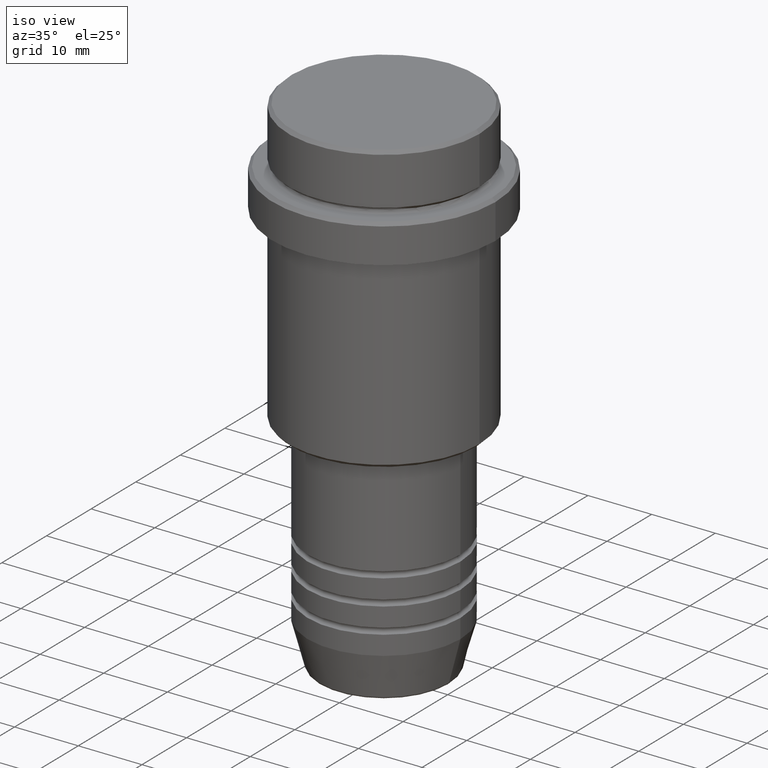
[diagram: clean part render]
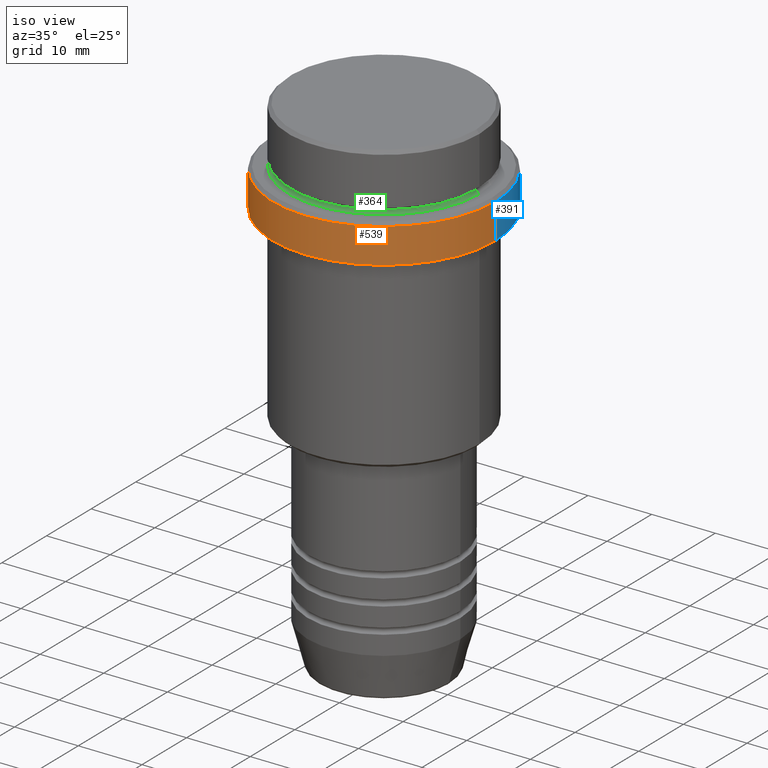
[diagram: same view with three faces highlighted in distinct colors, each labeled with its STEP entity id]
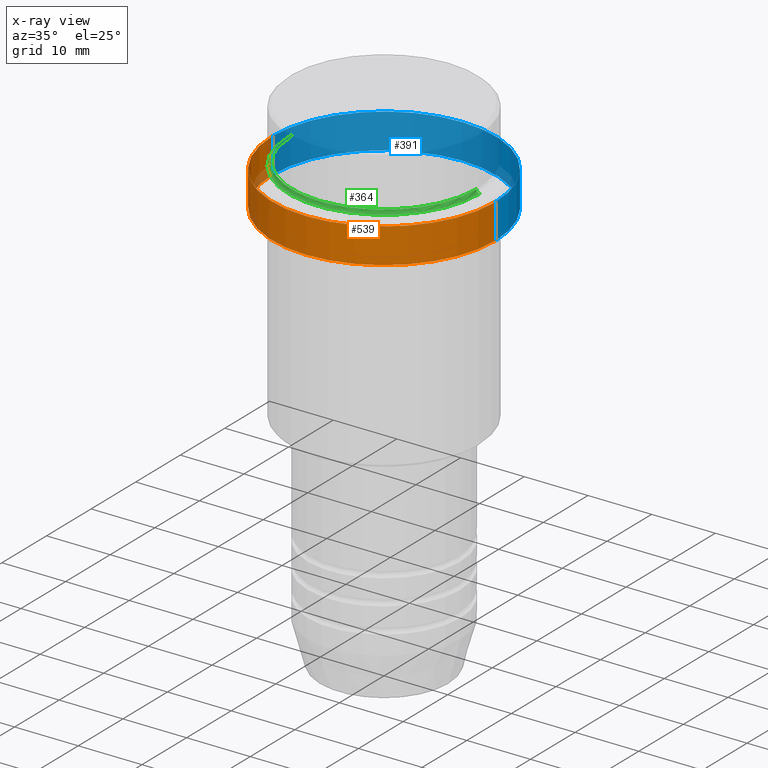
[diagram: x-ray of the same camera — body ghosted, the three highlighted faces saturated]
A machine part, iso view with three faces highlighted in distinct colors.
The next image is the same camera in x-ray (body ghosted, the three faces saturated) — at least one of them is partly hidden behind the body in this view.
Their STEP definitions:

[orange] entity #539 — the highlighted cylindrical surface (partial cylindrical patch) has radius 17.5 mm, axis along (-0, -0, 1).
#10 = CARTESIAN_POINT ( 'NONE',  ( -17.50000000000000000, 2.143131898507868248E-15, -15.00000000000000000 ) ) ;
#60 = CIRCLE ( 'NONE', #1124, 17.50000000000000000 ) ;
#92 = CYLINDRICAL_SURFACE ( 'NONE', #176, 17.50000000000000000 ) ;
#102 = FACE_OUTER_BOUND ( 'NONE', #1331, .T. ) ;
#116 = VERTEX_POINT ( 'NONE', #278 ) ;
#176 = AXIS2_PLACEMENT_3D ( 'NONE', #540, #764, #982 ) ;
#212 = CARTESIAN_POINT ( 'NONE',  ( 0.000000000000000000, 0.000000000000000000, -9.499999999999985789 ) ) ;
#278 = CARTESIAN_POINT ( 'NONE',  ( 17.50000000000000000, 0.000000000000000000, -15.00000000000000000 ) ) ;
#283 = ORIENTED_EDGE ( 'NONE', *, *, #458, .T. ) ;
#297 = DIRECTION ( 'NONE',  ( -0.000000000000000000, -0.000000000000000000, 1.000000000000000000 ) ) ;
#306 = ORIENTED_EDGE ( 'NONE', *, *, #852, .T. ) ;
#413 = CIRCLE ( 'NONE', #964, 17.50000000000000000 ) ;
#458 = EDGE_CURVE ( 'NONE', #682, #116, #60, .T. ) ;
#530 = EDGE_CURVE ( 'NONE', #568, #818, #413, .T. ) ;
#539 = ADVANCED_FACE ( 'NONE', ( #102 ), #92, .T. ) ;
#540 = CARTESIAN_POINT ( 'NONE',  ( 0.000000000000000000, 0.000000000000000000, 0.000000000000000000 ) ) ;
#547 = VECTOR ( 'NONE', #588, 1000.000000000000000 ) ;
#568 = VERTEX_POINT ( 'NONE', #1297 ) ;
#588 = DIRECTION ( 'NONE',  ( -0.000000000000000000, -0.000000000000000000, 1.000000000000000000 ) ) ;
#644 = DIRECTION ( 'NONE',  ( 0.000000000000000000, 0.000000000000000000, -1.000000000000000000 ) ) ;
#682 = VERTEX_POINT ( 'NONE', #10 ) ;
#764 = DIRECTION ( 'NONE',  ( -0.000000000000000000, -0.000000000000000000, 1.000000000000000000 ) ) ;
#818 = VERTEX_POINT ( 'NONE', #1246 ) ;
#829 = ORIENTED_EDGE ( 'NONE', *, *, #530, .T. ) ;
#830 = CARTESIAN_POINT ( 'NONE',  ( 17.50000000000000000, 0.000000000000000000, 0.000000000000000000 ) ) ;
#852 = EDGE_CURVE ( 'NONE', #116, #568, #1342, .T. ) ;
#946 = DIRECTION ( 'NONE',  ( 1.000000000000000000, 0.000000000000000000, 0.000000000000000000 ) ) ;
#953 = EDGE_CURVE ( 'NONE', #682, #818, #1183, .T. ) ;
#964 = AXIS2_PLACEMENT_3D ( 'NONE', #212, #644, #1068 ) ;
#982 = DIRECTION ( 'NONE',  ( 1.000000000000000000, 0.000000000000000000, 0.000000000000000000 ) ) ;
#1068 = DIRECTION ( 'NONE',  ( 1.000000000000000000, 0.000000000000000000, 0.000000000000000000 ) ) ;
#1099 = VECTOR ( 'NONE', #1275, 1000.000000000000000 ) ;
#1124 = AXIS2_PLACEMENT_3D ( 'NONE', #1374, #297, #946 ) ;
#1183 = LINE ( 'NONE', #1392, #1099 ) ;
#1246 = CARTESIAN_POINT ( 'NONE',  ( -17.50000000000000000, 2.143131898507868248E-15, -9.499999999999985789 ) ) ;
#1275 = DIRECTION ( 'NONE',  ( -0.000000000000000000, -0.000000000000000000, 1.000000000000000000 ) ) ;
#1279 = ORIENTED_EDGE ( 'NONE', *, *, #953, .F. ) ;
#1297 = CARTESIAN_POINT ( 'NONE',  ( 17.50000000000000000, 0.000000000000000000, -9.499999999999985789 ) ) ;
#1331 = EDGE_LOOP ( 'NONE', ( #1279, #283, #306, #829 ) ) ;
#1342 = LINE ( 'NONE', #830, #547 ) ;
#1374 = CARTESIAN_POINT ( 'NONE',  ( 0.000000000000000000, 0.000000000000000000, -15.00000000000000000 ) ) ;
#1392 = CARTESIAN_POINT ( 'NONE',  ( -17.50000000000000000, 2.143131898507868248E-15, 0.000000000000000000 ) ) ;

[blue] entity #391 — the highlighted cylindrical surface (partial cylindrical patch) has radius 17.5 mm, axis along (-0, -0, 1).
#10 = CARTESIAN_POINT ( 'NONE',  ( -17.50000000000000000, 2.143131898507868248E-15, -15.00000000000000000 ) ) ;
#41 = DIRECTION ( 'NONE',  ( 1.000000000000000000, 0.000000000000000000, 0.000000000000000000 ) ) ;
#49 = DIRECTION ( 'NONE',  ( -0.000000000000000000, -0.000000000000000000, 1.000000000000000000 ) ) ;
#87 = EDGE_CURVE ( 'NONE', #818, #568, #843, .T. ) ;
#116 = VERTEX_POINT ( 'NONE', #278 ) ;
#155 = EDGE_CURVE ( 'NONE', #116, #682, #315, .T. ) ;
#168 = DIRECTION ( 'NONE',  ( 1.000000000000000000, 0.000000000000000000, 0.000000000000000000 ) ) ;
#232 = CARTESIAN_POINT ( 'NONE',  ( 0.000000000000000000, 0.000000000000000000, -15.00000000000000000 ) ) ;
#278 = CARTESIAN_POINT ( 'NONE',  ( 17.50000000000000000, 0.000000000000000000, -15.00000000000000000 ) ) ;
#315 = CIRCLE ( 'NONE', #505, 17.50000000000000000 ) ;
#373 = DIRECTION ( 'NONE',  ( 0.000000000000000000, 0.000000000000000000, -1.000000000000000000 ) ) ;
#387 = AXIS2_PLACEMENT_3D ( 'NONE', #1356, #1350, #41 ) ;
#391 = ADVANCED_FACE ( 'NONE', ( #1040 ), #717, .T. ) ;
#449 = ORIENTED_EDGE ( 'NONE', *, *, #87, .T. ) ;
#453 = DIRECTION ( 'NONE',  ( 1.000000000000000000, 0.000000000000000000, 0.000000000000000000 ) ) ;
#505 = AXIS2_PLACEMENT_3D ( 'NONE', #232, #49, #168 ) ;
#547 = VECTOR ( 'NONE', #588, 1000.000000000000000 ) ;
#568 = VERTEX_POINT ( 'NONE', #1297 ) ;
#588 = DIRECTION ( 'NONE',  ( -0.000000000000000000, -0.000000000000000000, 1.000000000000000000 ) ) ;
#682 = VERTEX_POINT ( 'NONE', #10 ) ;
#717 = CYLINDRICAL_SURFACE ( 'NONE', #387, 17.50000000000000000 ) ;
#766 = ORIENTED_EDGE ( 'NONE', *, *, #852, .F. ) ;
#818 = VERTEX_POINT ( 'NONE', #1246 ) ;
#830 = CARTESIAN_POINT ( 'NONE',  ( 17.50000000000000000, 0.000000000000000000, 0.000000000000000000 ) ) ;
#843 = CIRCLE ( 'NONE', #935, 17.50000000000000000 ) ;
#852 = EDGE_CURVE ( 'NONE', #116, #568, #1342, .T. ) ;
#935 = AXIS2_PLACEMENT_3D ( 'NONE', #1325, #373, #453 ) ;
#953 = EDGE_CURVE ( 'NONE', #682, #818, #1183, .T. ) ;
#966 = ORIENTED_EDGE ( 'NONE', *, *, #953, .T. ) ;
#1040 = FACE_OUTER_BOUND ( 'NONE', #1145, .T. ) ;
#1099 = VECTOR ( 'NONE', #1275, 1000.000000000000000 ) ;
#1145 = EDGE_LOOP ( 'NONE', ( #1340, #966, #449, #766 ) ) ;
#1183 = LINE ( 'NONE', #1392, #1099 ) ;
#1246 = CARTESIAN_POINT ( 'NONE',  ( -17.50000000000000000, 2.143131898507868248E-15, -9.499999999999985789 ) ) ;
#1275 = DIRECTION ( 'NONE',  ( -0.000000000000000000, -0.000000000000000000, 1.000000000000000000 ) ) ;
#1297 = CARTESIAN_POINT ( 'NONE',  ( 17.50000000000000000, 0.000000000000000000, -9.499999999999985789 ) ) ;
#1325 = CARTESIAN_POINT ( 'NONE',  ( 0.000000000000000000, 0.000000000000000000, -9.499999999999985789 ) ) ;
#1340 = ORIENTED_EDGE ( 'NONE', *, *, #155, .T. ) ;
#1342 = LINE ( 'NONE', #830, #547 ) ;
#1350 = DIRECTION ( 'NONE',  ( -0.000000000000000000, -0.000000000000000000, 1.000000000000000000 ) ) ;
#1356 = CARTESIAN_POINT ( 'NONE',  ( 0.000000000000000000, 0.000000000000000000, 0.000000000000000000 ) ) ;
#1392 = CARTESIAN_POINT ( 'NONE',  ( -17.50000000000000000, 2.143131898507868248E-15, 0.000000000000000000 ) ) ;

[green] entity #364 — the highlighted toroidal blend (fillet) surface has major radius 15 mm and minor (blend) radius 0.5 mm.
#30 = CARTESIAN_POINT ( 'NONE',  ( 0.000000000000000000, 0.000000000000000000, -9.000000000000000000 ) ) ;
#47 = DIRECTION ( 'NONE',  ( 0.000000000000000000, 0.000000000000000000, -1.000000000000000000 ) ) ;
#157 = DIRECTION ( 'NONE',  ( 1.224646799147353207E-16, 1.000000000000000000, 0.000000000000000000 ) ) ;
#159 = DIRECTION ( 'NONE',  ( -0.000000000000000000, -0.000000000000000000, 1.000000000000000000 ) ) ;
#196 = CIRCLE ( 'NONE', #461, 14.99999999999999289 ) ;
#198 = EDGE_CURVE ( 'NONE', #294, #736, #196, .T. ) ;
#213 = CARTESIAN_POINT ( 'NONE',  ( 14.99999999999999289, 0.000000000000000000, -9.000000000000000000 ) ) ;
#226 = CIRCLE ( 'NONE', #1191, 0.5000000000000004441 ) ;
#235 = DIRECTION ( 'NONE',  ( 1.000000000000000000, 0.000000000000000000, 0.000000000000000000 ) ) ;
#261 = EDGE_LOOP ( 'NONE', ( #1119, #836, #425, #894 ) ) ;
#294 = VERTEX_POINT ( 'NONE', #213 ) ;
#349 = DIRECTION ( 'NONE',  ( 1.000000000000000000, 0.000000000000000000, 0.000000000000000000 ) ) ;
#364 = ADVANCED_FACE ( 'NONE', ( #490 ), #1166, .F. ) ;
#393 = CARTESIAN_POINT ( 'NONE',  ( 0.000000000000000000, 0.000000000000000000, -8.499999999999998224 ) ) ;
#425 = ORIENTED_EDGE ( 'NONE', *, *, #198, .F. ) ;
#461 = AXIS2_PLACEMENT_3D ( 'NONE', #30, #47, #235 ) ;
#490 = FACE_OUTER_BOUND ( 'NONE', #261, .T. ) ;
#507 = VERTEX_POINT ( 'NONE', #1276 ) ;
#511 = DIRECTION ( 'NONE',  ( 1.000000000000000000, 0.000000000000000000, 0.000000000000000000 ) ) ;
#529 = CIRCLE ( 'NONE', #823, 14.49999999999999289 ) ;
#638 = CIRCLE ( 'NONE', #756, 0.5000000000000004441 ) ;
#708 = CARTESIAN_POINT ( 'NONE',  ( -14.99999999999999289, 1.836970198721028800E-15, -8.499999999999998224 ) ) ;
#736 = VERTEX_POINT ( 'NONE', #1202 ) ;
#756 = AXIS2_PLACEMENT_3D ( 'NONE', #905, #1016, #1207 ) ;
#819 = AXIS2_PLACEMENT_3D ( 'NONE', #393, #159, #511 ) ;
#823 = AXIS2_PLACEMENT_3D ( 'NONE', #1224, #998, #349 ) ;
#836 = ORIENTED_EDGE ( 'NONE', *, *, #1353, .T. ) ;
#851 = CARTESIAN_POINT ( 'NONE',  ( 14.49999999999999289, 0.000000000000000000, -8.499999999999998224 ) ) ;
#894 = ORIENTED_EDGE ( 'NONE', *, *, #1100, .F. ) ;
#905 = CARTESIAN_POINT ( 'NONE',  ( 14.99999999999999289, 0.000000000000000000, -8.499999999999998224 ) ) ;
#998 = DIRECTION ( 'NONE',  ( -0.000000000000000000, -0.000000000000000000, 1.000000000000000000 ) ) ;
#1016 = DIRECTION ( 'NONE',  ( 0.000000000000000000, -1.000000000000000000, 0.000000000000000000 ) ) ;
#1100 = EDGE_CURVE ( 'NONE', #1363, #294, #638, .T. ) ;
#1119 = ORIENTED_EDGE ( 'NONE', *, *, #1141, .F. ) ;
#1141 = EDGE_CURVE ( 'NONE', #507, #1363, #529, .T. ) ;
#1166 = TOROIDAL_SURFACE ( 'NONE', #819, 14.99999999999999289, 0.5000000000000000000 ) ;
#1176 = DIRECTION ( 'NONE',  ( -1.000000000000000000, 1.224646799147349509E-16, 0.000000000000000000 ) ) ;
#1191 = AXIS2_PLACEMENT_3D ( 'NONE', #708, #157, #1176 ) ;
#1202 = CARTESIAN_POINT ( 'NONE',  ( -14.99999999999999289, 1.836970198721028800E-15, -9.000000000000000000 ) ) ;
#1207 = DIRECTION ( 'NONE',  ( 0.000000000000000000, 0.000000000000000000, -1.000000000000000000 ) ) ;
#1224 = CARTESIAN_POINT ( 'NONE',  ( 0.000000000000000000, 0.000000000000000000, -8.499999999999998224 ) ) ;
#1276 = CARTESIAN_POINT ( 'NONE',  ( -14.49999999999999289, 1.806354028742345013E-15, -8.499999999999998224 ) ) ;
#1353 = EDGE_CURVE ( 'NONE', #507, #736, #226, .T. ) ;
#1363 = VERTEX_POINT ( 'NONE', #851 ) ;